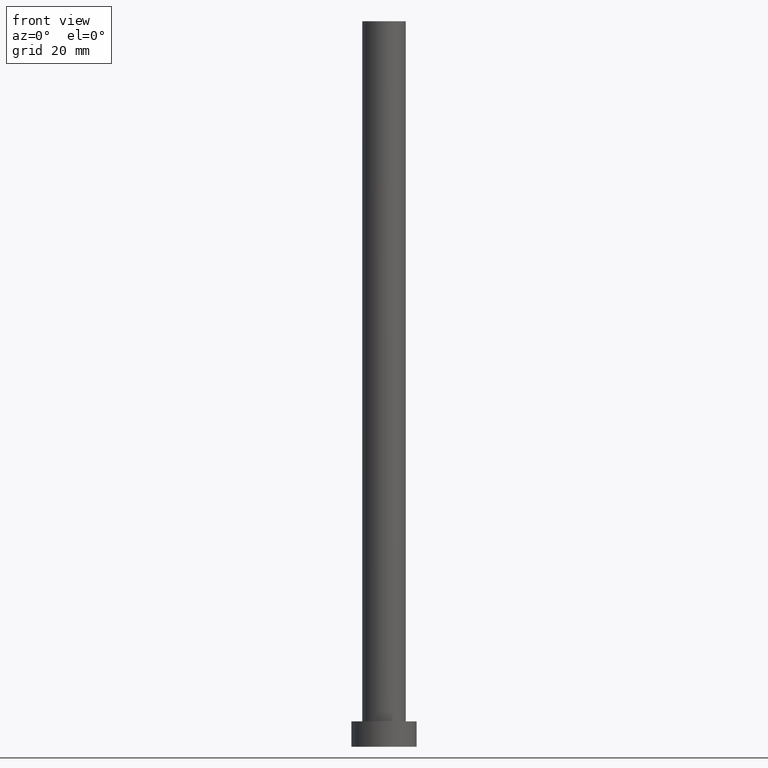
[diagram: clean part render]
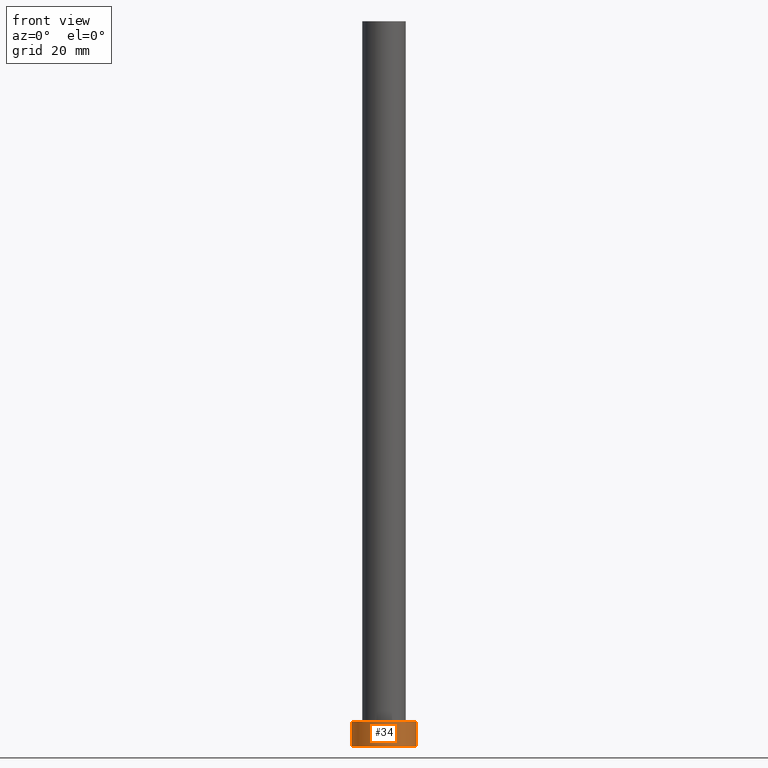
[diagram: same view with one face highlighted and labeled with its STEP entity id]
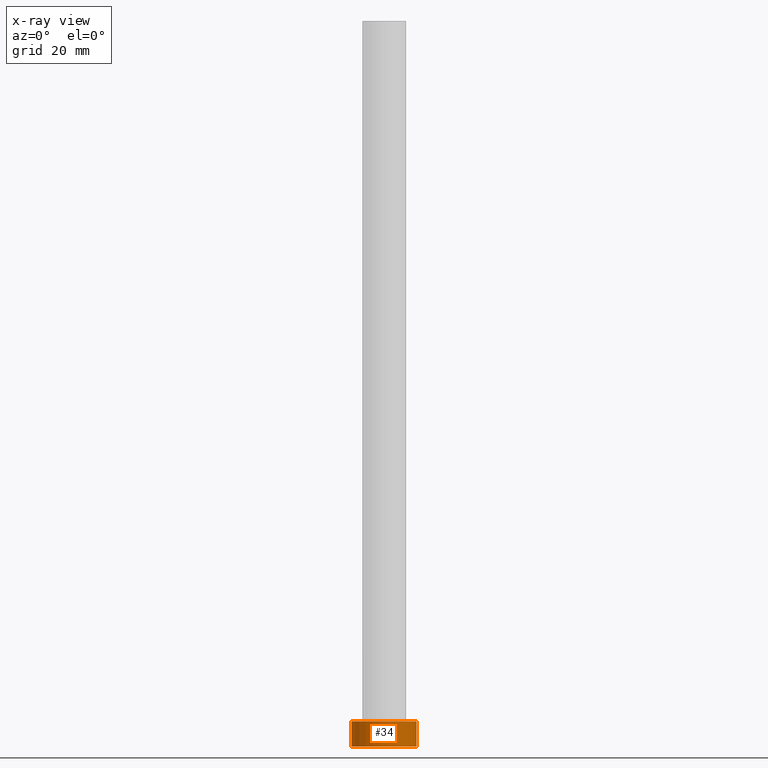
[diagram: x-ray of the same camera — body ghosted, the highlighted face saturated]
A machine part, front view. The second image highlights one B-rep face of the part: STEP entity #34.
The next image is the same camera in x-ray: the body ghosted, the highlighted face saturated — about 0% of this face is hidden behind the body in this view.
In plain terms, the highlighted cylindrical surface (edge-blend (fillet) strip) has radius 9 mm, axis along (-0, -0, -1).
Its self-contained STEP definition (entity closure, byte-faithful):
#2 = DIRECTION ( 'NONE',  ( 0.000000000000000000, 0.000000000000000000, 1.000000000000000000 ) ) ;
#7 = CARTESIAN_POINT ( 'NONE',  ( 0.000000000000000000, 0.000000000000000000, 7.000000000000000000 ) ) ;
#17 = LINE ( 'NONE', #94, #214 ) ;
#22 = AXIS2_PLACEMENT_3D ( 'NONE', #99, #2, #103 ) ;
#25 = EDGE_CURVE ( 'NONE', #31, #76, #17, .T. ) ;
#31 = VERTEX_POINT ( 'NONE', #249 ) ;
#34 = ADVANCED_FACE ( 'NONE', ( #88 ), #160, .T. ) ;
#41 = CARTESIAN_POINT ( 'NONE',  ( -9.000000000000000000, 0.000000000000000000, 7.000000000000000000 ) ) ;
#49 = ORIENTED_EDGE ( 'NONE', *, *, #110, .T. ) ;
#66 = CIRCLE ( 'NONE', #102, 9.000000000000000000 ) ;
#67 = VERTEX_POINT ( 'NONE', #95 ) ;
#72 = ORIENTED_EDGE ( 'NONE', *, *, #173, .F. ) ;
#76 = VERTEX_POINT ( 'NONE', #132 ) ;
#84 = DIRECTION ( 'NONE',  ( -0.000000000000000000, -0.000000000000000000, -1.000000000000000000 ) ) ;
#88 = FACE_OUTER_BOUND ( 'NONE', #196, .T. ) ;
#93 = DIRECTION ( 'NONE',  ( 0.000000000000000000, 0.000000000000000000, 1.000000000000000000 ) ) ;
#94 = CARTESIAN_POINT ( 'NONE',  ( 9.000000000000000000, 1.102182119232617714E-15, 7.000000000000000000 ) ) ;
#95 = CARTESIAN_POINT ( 'NONE',  ( -9.000000000000000000, 0.000000000000000000, 0.000000000000000000 ) ) ;
#97 = CIRCLE ( 'NONE', #22, 9.000000000000000000 ) ;
#99 = CARTESIAN_POINT ( 'NONE',  ( 0.000000000000000000, 0.000000000000000000, 0.000000000000000000 ) ) ;
#102 = AXIS2_PLACEMENT_3D ( 'NONE', #251, #93, #129 ) ;
#103 = DIRECTION ( 'NONE',  ( 1.000000000000000000, 0.000000000000000000, 0.000000000000000000 ) ) ;
#110 = EDGE_CURVE ( 'NONE', #67, #76, #97, .T. ) ;
#129 = DIRECTION ( 'NONE',  ( 1.000000000000000000, 0.000000000000000000, 0.000000000000000000 ) ) ;
#130 = ORIENTED_EDGE ( 'NONE', *, *, #206, .T. ) ;
#132 = CARTESIAN_POINT ( 'NONE',  ( 9.000000000000000000, 1.102182119232617714E-15, 0.000000000000000000 ) ) ;
#133 = VECTOR ( 'NONE', #153, 1000.000000000000000 ) ;
#138 = DIRECTION ( 'NONE',  ( -1.000000000000000000, 0.000000000000000000, 0.000000000000000000 ) ) ;
#153 = DIRECTION ( 'NONE',  ( -0.000000000000000000, -0.000000000000000000, -1.000000000000000000 ) ) ;
#160 = CYLINDRICAL_SURFACE ( 'NONE', #253, 9.000000000000000000 ) ;
#171 = DIRECTION ( 'NONE',  ( -0.000000000000000000, -0.000000000000000000, -1.000000000000000000 ) ) ;
#173 = EDGE_CURVE ( 'NONE', #197, #31, #66, .T. ) ;
#196 = EDGE_LOOP ( 'NONE', ( #221, #72, #130, #49 ) ) ;
#197 = VERTEX_POINT ( 'NONE', #41 ) ;
#206 = EDGE_CURVE ( 'NONE', #197, #67, #245, .T. ) ;
#214 = VECTOR ( 'NONE', #171, 1000.000000000000000 ) ;
#221 = ORIENTED_EDGE ( 'NONE', *, *, #25, .F. ) ;
#241 = CARTESIAN_POINT ( 'NONE',  ( -9.000000000000000000, 0.000000000000000000, 7.000000000000000000 ) ) ;
#245 = LINE ( 'NONE', #241, #133 ) ;
#249 = CARTESIAN_POINT ( 'NONE',  ( 9.000000000000000000, 1.102182119232617714E-15, 7.000000000000000000 ) ) ;
#251 = CARTESIAN_POINT ( 'NONE',  ( 0.000000000000000000, 0.000000000000000000, 7.000000000000000000 ) ) ;
#253 = AXIS2_PLACEMENT_3D ( 'NONE', #7, #84, #138 ) ;